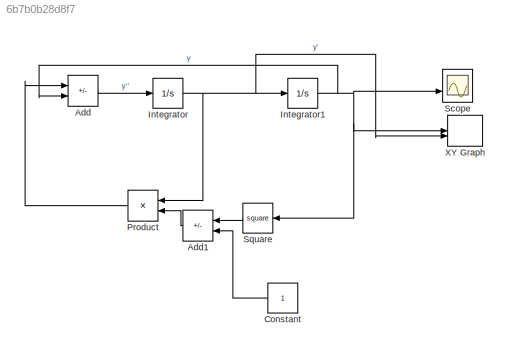
MODEL slx_6b7b0b28d8f7
KIND model
CONFIG AbsTol = auto
CONFIG EnableMultiTasking = off
CONFIG FixedStep = auto
CONFIG MaxStep = auto
CONFIG MinStep = auto
CONFIG RelTol = 1e-3
CONFIG SampleTimeConstraint = Unconstrained
CONFIG SolverName = VariableStepAuto
CONFIG StartTime = 0.0
CONFIG StopTime = 20
BLOCK [Sum] Add
  IconShape = rectangular
  Inputs = --
BLOCK [Sum] Add1
  IconShape = rectangular
  Inputs = +-
  NameLocation = top
BLOCK [Constant] Constant
  NameLocation = top
BLOCK [Integrator] Integrator
  InitialCondition = -0.01
BLOCK [Integrator] Integrator1
BLOCK [Product] Product
  NameLocation = top
BLOCK [Scope] Scope
  ActiveDisplayYMaximum = 10.118218916081386
  ActiveDisplayYMinimum = -10.037017131506204
  Floating = off
  GraphicalSettings = {"Style":{"BackgroundColor":[0.12941176470588237,0.12941176470588237,0.12941176470588237],"AxesColor":[0.07058823529411765,0.07058823529411765,0.07058823529411765],"LabelsColor":[0.8509803921568627,0.8509803921568627,0.8509803921568627],"PreserveColors":false,"Visible":[true,true],"LineStyle":["-","-"],"LineWidth":[1.5,1.5],"BarWidth":[0.9,0.9],"LineColor":["auto","auto"],"LineFaceAlpha":[1,1],"Li...<+2082ch>
  MultipleDisplayCache = [{"MaxYLimMag":10,"MaxYLimReal":10.118218916081386,"MinYLimMag":0,"MinYLimReal":-10.037017131506204,"PlotAsMagnitudePhase":false,"ShowGrid":true,"ShowLegend":true,"Title":"%<SignalLabel>","YLabel":""}]
  NumInputPorts = 2
  ScopeFrameLocation = window
  ShowLegend = on
  WasSavedAsWebScope = on
  WindowPosition = [617.000000,300.000000,560.000000,420.000000,]
BLOCK [Math] Square
  NameLocation = top
  Operator = square
BLOCK [Record] XY Graph
  CompatibilityTag = XY
  FileSettingsInternal = {"entries":[{"content":{"excelSettings":{"content":{},"type":"Streamout.ExcelSettings"},"parquetSettings":{"content":{},"type":"Streamout.ParquetSettings"}},"type":"Streamout.FileSettingStorage","uuid":""}],"packageUris":["http:\/\/schema.mathworks.com\/mf0\/streamout_blocks\/R2020a"],"version":"1.0"}
  FrameSettings = [0, 0]
  Layout = [1 1]
  NumPorts = 2.0
  SignalsInternal = {"entries":[{"content":{"signals":[{"content":{"blockPath":[],"dimensions":[1],"domain":"","lineColor":"#a2142f","plots":[ 1 ],"port":1,"sid":[""],"signalID":1,"signalName":"y"},"type":"RecordBlkView.Signal","uuid":""},{"content":{"blockPath":[],"dimensions":[1],"domain":"","lineColor":"#139fff","plots":[ 1 ],"port":2,"sid":[""],"signalID":2,"signalName":"y'"},"type":"RecordBlkView.Signal","uuid":...<+149ch>
  VisualizationBindings = {"xyplotplugin":{"info":[{"series":[{"bindingParametersList":[{"parameter":"X-Axis","signalID":1,"signalName":"y"},{"parameter":"Y-Axis","signalID":2,"signalName":"y'"}],"seriesID":0}],"subplotID":1}]}}
LINE Add1:1 -> Product:2
LINE Add:1 -> Integrator:1
LINE Constant:1 -> Add1:2
NET Integrator1:1 -> Add:2, Scope:2, Square:1, XY Graph:1
NET Integrator:1 -> Integrator1:1, Product:1, XY Graph:2
LINE Product:1 -> Add:1
LINE Square:1 -> Add1:1
note: NET lines group one-source signal fan-out (src -> all destinations, sorted); 1:1 wires keep LINE
